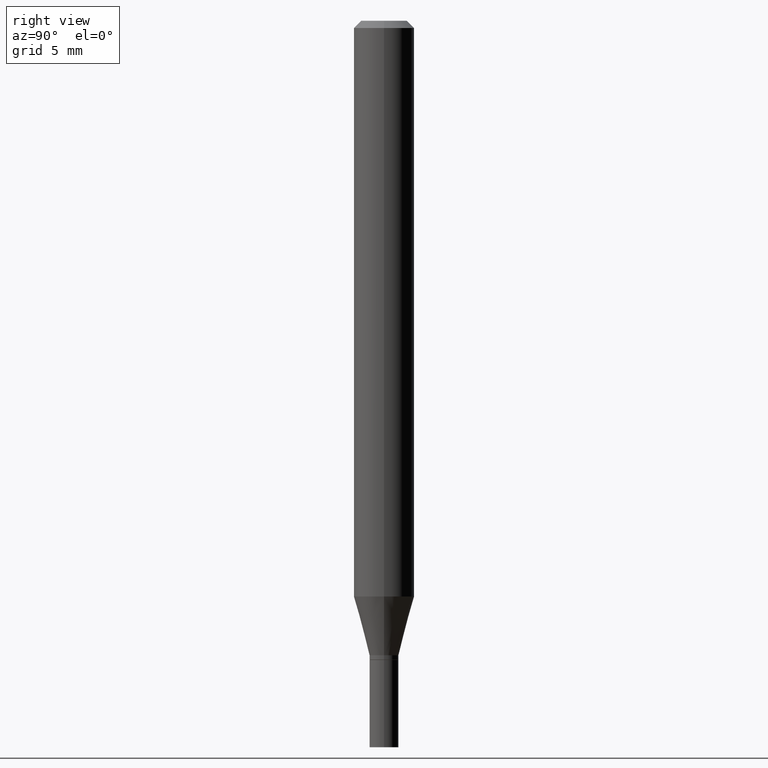
[diagram: clean part render]
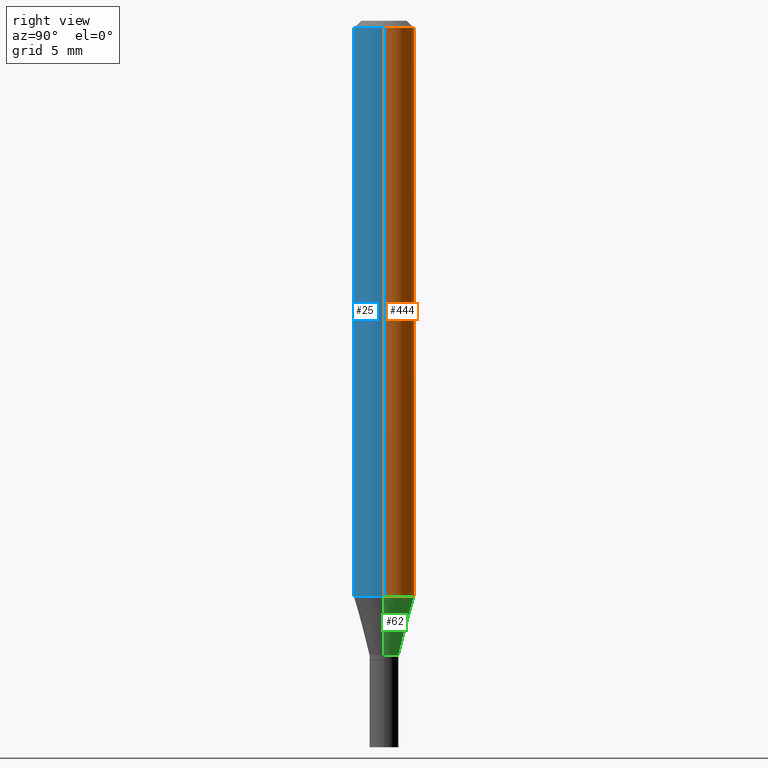
[diagram: same view with three faces highlighted in distinct colors, each labeled with its STEP entity id]
A machine part, right view with three faces highlighted in distinct colors.
Their STEP definitions:

[orange] entity #444 — the highlighted cylindrical surface (edge-blend (fillet) strip) has radius 1.5875 mm, axis along (-0, 0, 1).
#20 = EDGE_CURVE ( 'NONE', #429, #276, #445, .T. ) ;
#29 = VERTEX_POINT ( 'NONE', #45 ) ;
#35 = DIRECTION ( 'NONE',  ( -2.445468806185136597E-29, 3.491481338843145583E-15, 1.000000000000000000 ) ) ;
#36 = CYLINDRICAL_SURFACE ( 'NONE', #135, 0.06250000000000000000 ) ;
#45 = CARTESIAN_POINT ( 'NONE',  ( 0.06250000000000000000, -4.586788184357076846E-15, -1.188708348754012878 ) ) ;
#52 = VERTEX_POINT ( 'NONE', #375 ) ;
#59 = AXIS2_PLACEMENT_3D ( 'NONE', #357, #221, #329 ) ;
#76 = CARTESIAN_POINT ( 'NONE',  ( -0.06250000000000000000, -1.657273408692103709E-15, -0.01499999999999999944 ) ) ;
#113 = CARTESIAN_POINT ( 'NONE',  ( 0.06250000000000000000, -4.888073874380388472E-16, -0.01499999999999999944 ) ) ;
#135 = AXIS2_PLACEMENT_3D ( 'NONE', #330, #175, #142 ) ;
#141 = LINE ( 'NONE', #288, #258 ) ;
#142 = DIRECTION ( 'NONE',  ( 1.000000000000000000, -6.982962677686266711E-15, 4.876176775795935793E-29 ) ) ;
#175 = DIRECTION ( 'NONE',  ( -2.445468806185136597E-29, 3.491481338843145583E-15, 1.000000000000000000 ) ) ;
#192 = ORIENTED_EDGE ( 'NONE', *, *, #273, .F. ) ;
#193 = EDGE_LOOP ( 'NONE', ( #342, #313, #295, #192 ) ) ;
#215 = DIRECTION ( 'NONE',  ( -2.445468806185136877E-29, 3.491481338843145188E-15, 1.000000000000000000 ) ) ;
#220 = CARTESIAN_POINT ( 'NONE',  ( 3.668203209277705088E-31, -5.237222008264718399E-17, -0.01499999999999999944 ) ) ;
#221 = DIRECTION ( 'NONE',  ( -2.445468806185136597E-29, 3.491481338843145583E-15, 1.000000000000000000 ) ) ;
#224 = FACE_OUTER_BOUND ( 'NONE', #193, .T. ) ;
#242 = EDGE_CURVE ( 'NONE', #29, #52, #335, .T. ) ;
#245 = EDGE_CURVE ( 'NONE', #52, #276, #141, .T. ) ;
#258 = VECTOR ( 'NONE', #215, 39.37007874015748143 ) ;
#260 = LINE ( 'NONE', #405, #325 ) ;
#273 = EDGE_CURVE ( 'NONE', #29, #429, #260, .T. ) ;
#276 = VERTEX_POINT ( 'NONE', #76 ) ;
#288 = CARTESIAN_POINT ( 'NONE',  ( -0.06250000000000000000, 4.440892098500626162E-16, -3.074334431409316114E-30 ) ) ;
#295 = ORIENTED_EDGE ( 'NONE', *, *, #20, .F. ) ;
#313 = ORIENTED_EDGE ( 'NONE', *, *, #245, .T. ) ;
#325 = VECTOR ( 'NONE', #431, 39.37007874015748143 ) ;
#329 = DIRECTION ( 'NONE',  ( 1.000000000000000000, -6.982962677686262766E-15, 0.000000000000000000 ) ) ;
#330 = CARTESIAN_POINT ( 'NONE',  ( 0.000000000000000000, 0.000000000000000000, 0.000000000000000000 ) ) ;
#335 = CIRCLE ( 'NONE', #59, 0.06250000000000000000 ) ;
#342 = ORIENTED_EDGE ( 'NONE', *, *, #242, .T. ) ;
#357 = CARTESIAN_POINT ( 'NONE',  ( 2.906949186529780913E-29, -4.150353017001685176E-15, -1.188708348754012878 ) ) ;
#368 = DIRECTION ( 'NONE',  ( 1.000000000000000000, -6.982962677686266711E-15, 0.000000000000000000 ) ) ;
#375 = CARTESIAN_POINT ( 'NONE',  ( -0.06250000000000000000, -3.706263807151623349E-15, -1.188708348754012878 ) ) ;
#391 = AXIS2_PLACEMENT_3D ( 'NONE', #220, #35, #368 ) ;
#405 = CARTESIAN_POINT ( 'NONE',  ( 0.06250000000000000000, -4.364351673553916694E-16, 3.047610484872459871E-30 ) ) ;
#429 = VERTEX_POINT ( 'NONE', #113 ) ;
#431 = DIRECTION ( 'NONE',  ( -2.445468806185136877E-29, 3.491481338843145188E-15, 1.000000000000000000 ) ) ;
#444 = ADVANCED_FACE ( 'NONE', ( #224 ), #36, .T. ) ;
#445 = CIRCLE ( 'NONE', #391, 0.06250000000000000000 ) ;

[blue] entity #25 — the highlighted cylindrical surface (edge-blend (fillet) strip) has radius 1.5875 mm, axis along (-0, 0, 1).
#12 = DIRECTION ( 'NONE',  ( 1.000000000000000000, -6.982962677686262766E-15, 0.000000000000000000 ) ) ;
#19 = DIRECTION ( 'NONE',  ( -2.445468806185136597E-29, 3.491481338843145583E-15, 1.000000000000000000 ) ) ;
#25 = ADVANCED_FACE ( 'NONE', ( #160 ), #338, .T. ) ;
#29 = VERTEX_POINT ( 'NONE', #45 ) ;
#44 = CIRCLE ( 'NONE', #318, 0.06250000000000000000 ) ;
#45 = CARTESIAN_POINT ( 'NONE',  ( 0.06250000000000000000, -4.586788184357076846E-15, -1.188708348754012878 ) ) ;
#52 = VERTEX_POINT ( 'NONE', #375 ) ;
#67 = ORIENTED_EDGE ( 'NONE', *, *, #140, .T. ) ;
#76 = CARTESIAN_POINT ( 'NONE',  ( -0.06250000000000000000, -1.657273408692103709E-15, -0.01499999999999999944 ) ) ;
#96 = AXIS2_PLACEMENT_3D ( 'NONE', #112, #19, #268 ) ;
#112 = CARTESIAN_POINT ( 'NONE',  ( 0.000000000000000000, 0.000000000000000000, 0.000000000000000000 ) ) ;
#113 = CARTESIAN_POINT ( 'NONE',  ( 0.06250000000000000000, -4.888073874380388472E-16, -0.01499999999999999944 ) ) ;
#123 = ORIENTED_EDGE ( 'NONE', *, *, #245, .F. ) ;
#140 = EDGE_CURVE ( 'NONE', #52, #29, #170, .T. ) ;
#141 = LINE ( 'NONE', #288, #258 ) ;
#160 = FACE_OUTER_BOUND ( 'NONE', #401, .T. ) ;
#170 = CIRCLE ( 'NONE', #219, 0.06250000000000000000 ) ;
#194 = DIRECTION ( 'NONE',  ( -2.445468806185136597E-29, 3.491481338843145583E-15, 1.000000000000000000 ) ) ;
#215 = DIRECTION ( 'NONE',  ( -2.445468806185136877E-29, 3.491481338843145188E-15, 1.000000000000000000 ) ) ;
#219 = AXIS2_PLACEMENT_3D ( 'NONE', #418, #194, #12 ) ;
#245 = EDGE_CURVE ( 'NONE', #52, #276, #141, .T. ) ;
#251 = DIRECTION ( 'NONE',  ( 1.000000000000000000, -6.982962677686266711E-15, 0.000000000000000000 ) ) ;
#258 = VECTOR ( 'NONE', #215, 39.37007874015748143 ) ;
#260 = LINE ( 'NONE', #405, #325 ) ;
#268 = DIRECTION ( 'NONE',  ( 1.000000000000000000, -6.982962677686266711E-15, 4.876176775795935793E-29 ) ) ;
#273 = EDGE_CURVE ( 'NONE', #29, #429, #260, .T. ) ;
#276 = VERTEX_POINT ( 'NONE', #76 ) ;
#286 = DIRECTION ( 'NONE',  ( -2.445468806185136597E-29, 3.491481338843145583E-15, 1.000000000000000000 ) ) ;
#288 = CARTESIAN_POINT ( 'NONE',  ( -0.06250000000000000000, 4.440892098500626162E-16, -3.074334431409316114E-30 ) ) ;
#318 = AXIS2_PLACEMENT_3D ( 'NONE', #361, #286, #251 ) ;
#323 = EDGE_CURVE ( 'NONE', #276, #429, #44, .T. ) ;
#325 = VECTOR ( 'NONE', #431, 39.37007874015748143 ) ;
#338 = CYLINDRICAL_SURFACE ( 'NONE', #96, 0.06250000000000000000 ) ;
#361 = CARTESIAN_POINT ( 'NONE',  ( 3.668203209277705088E-31, -5.237222008264718399E-17, -0.01499999999999999944 ) ) ;
#373 = ORIENTED_EDGE ( 'NONE', *, *, #323, .F. ) ;
#375 = CARTESIAN_POINT ( 'NONE',  ( -0.06250000000000000000, -3.706263807151623349E-15, -1.188708348754012878 ) ) ;
#401 = EDGE_LOOP ( 'NONE', ( #123, #67, #416, #373 ) ) ;
#405 = CARTESIAN_POINT ( 'NONE',  ( 0.06250000000000000000, -4.364351673553916694E-16, 3.047610484872459871E-30 ) ) ;
#416 = ORIENTED_EDGE ( 'NONE', *, *, #273, .T. ) ;
#418 = CARTESIAN_POINT ( 'NONE',  ( 2.906949186529780913E-29, -4.150353017001685176E-15, -1.188708348754012878 ) ) ;
#429 = VERTEX_POINT ( 'NONE', #113 ) ;
#431 = DIRECTION ( 'NONE',  ( -2.445468806185136877E-29, 3.491481338843145188E-15, 1.000000000000000000 ) ) ;

[green] entity #62 — the highlighted conical surface has half-angle 15 deg.
#11 = VERTEX_POINT ( 'NONE', #38 ) ;
#29 = VERTEX_POINT ( 'NONE', #45 ) ;
#38 = CARTESIAN_POINT ( 'NONE',  ( -0.03000000000000020012, -4.033470770154056946E-15, -1.310000000000000275 ) ) ;
#45 = CARTESIAN_POINT ( 'NONE',  ( 0.06250000000000000000, -4.586788184357076846E-15, -1.188708348754012878 ) ) ;
#46 = LINE ( 'NONE', #408, #283 ) ;
#52 = VERTEX_POINT ( 'NONE', #375 ) ;
#55 = DIRECTION ( 'NONE',  ( 1.000000000000000000, -6.982962677686253300E-15, 0.000000000000000000 ) ) ;
#57 = DIRECTION ( 'NONE',  ( -2.445468806185136597E-29, 3.491481338843145583E-15, 1.000000000000000000 ) ) ;
#58 = DIRECTION ( 'NONE',  ( 1.000000000000000000, -6.982962677686253300E-15, 0.000000000000000000 ) ) ;
#59 = AXIS2_PLACEMENT_3D ( 'NONE', #357, #221, #329 ) ;
#62 = ADVANCED_FACE ( 'NONE', ( #172 ), #433, .T. ) ;
#103 = LINE ( 'NONE', #253, #250 ) ;
#134 = CIRCLE ( 'NONE', #403, 0.03000000000000020012 ) ;
#138 = DIRECTION ( 'NONE',  ( 0.2588190451025214611, 1.565188264969621573E-15, 0.9659258262890682012 ) ) ;
#172 = FACE_OUTER_BOUND ( 'NONE', #354, .T. ) ;
#188 = CARTESIAN_POINT ( 'NONE',  ( 0.03000000000000020012, -4.783329434215110683E-15, -1.310000000000000275 ) ) ;
#199 = EDGE_CURVE ( 'NONE', #398, #11, #134, .T. ) ;
#221 = DIRECTION ( 'NONE',  ( -2.445468806185136597E-29, 3.491481338843145583E-15, 1.000000000000000000 ) ) ;
#236 = AXIS2_PLACEMENT_3D ( 'NONE', #321, #57, #58 ) ;
#242 = EDGE_CURVE ( 'NONE', #29, #52, #335, .T. ) ;
#250 = VECTOR ( 'NONE', #138, 39.37007874015747433 ) ;
#253 = CARTESIAN_POINT ( 'NONE',  ( 0.03000000000000020012, -4.783329434215110683E-15, -1.310000000000000275 ) ) ;
#283 = VECTOR ( 'NONE', #441, 39.37007874015747433 ) ;
#292 = EDGE_CURVE ( 'NONE', #398, #29, #103, .T. ) ;
#321 = CARTESIAN_POINT ( 'NONE',  ( 3.203564136102529457E-29, -4.573840553884521577E-15, -1.310000000000000275 ) ) ;
#329 = DIRECTION ( 'NONE',  ( 1.000000000000000000, -6.982962677686262766E-15, 0.000000000000000000 ) ) ;
#335 = CIRCLE ( 'NONE', #59, 0.06250000000000000000 ) ;
#349 = DIRECTION ( 'NONE',  ( -2.445468806185136597E-29, 3.491481338843145583E-15, 1.000000000000000000 ) ) ;
#351 = ORIENTED_EDGE ( 'NONE', *, *, #199, .T. ) ;
#354 = EDGE_LOOP ( 'NONE', ( #351, #466, #460, #432 ) ) ;
#357 = CARTESIAN_POINT ( 'NONE',  ( 2.906949186529780913E-29, -4.150353017001685176E-15, -1.188708348754012878 ) ) ;
#375 = CARTESIAN_POINT ( 'NONE',  ( -0.06250000000000000000, -3.706263807151623349E-15, -1.188708348754012878 ) ) ;
#382 = CARTESIAN_POINT ( 'NONE',  ( 3.203564136102529457E-29, -4.573840553884521577E-15, -1.310000000000000275 ) ) ;
#398 = VERTEX_POINT ( 'NONE', #188 ) ;
#403 = AXIS2_PLACEMENT_3D ( 'NONE', #382, #349, #55 ) ;
#404 = EDGE_CURVE ( 'NONE', #11, #52, #46, .T. ) ;
#408 = CARTESIAN_POINT ( 'NONE',  ( -0.03000000000000020012, -4.360677733156489754E-15, -1.310000000000000275 ) ) ;
#432 = ORIENTED_EDGE ( 'NONE', *, *, #292, .F. ) ;
#433 = CONICAL_SURFACE ( 'NONE', #236, 0.03000000000000020012, 0.2617993877991501295 ) ;
#441 = DIRECTION ( 'NONE',  ( -0.2588190451025214611, 5.211531920934551042E-15, 0.9659258262890682012 ) ) ;
#460 = ORIENTED_EDGE ( 'NONE', *, *, #242, .F. ) ;
#466 = ORIENTED_EDGE ( 'NONE', *, *, #404, .T. ) ;